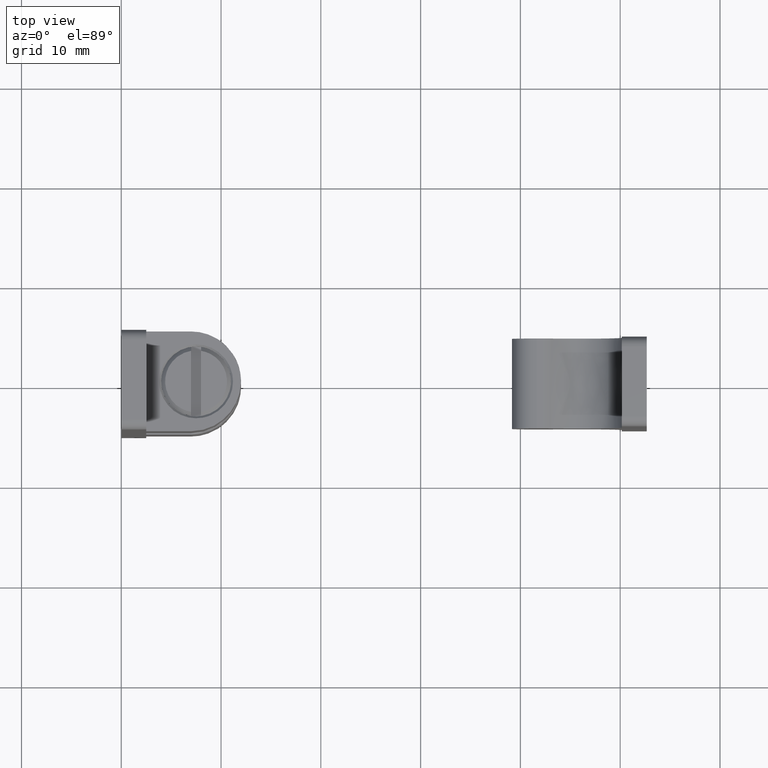
[diagram: clean part render]
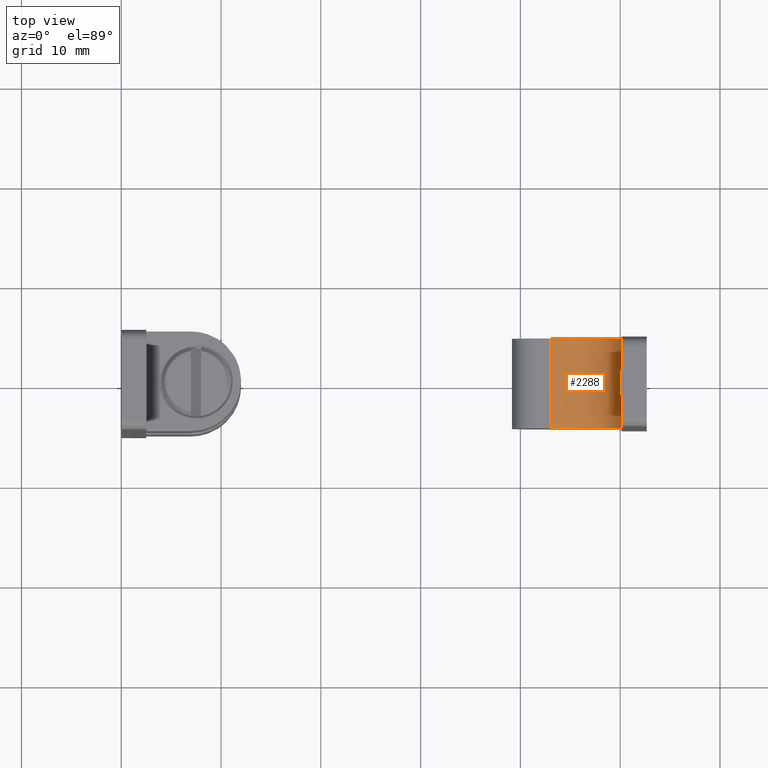
[diagram: same view with one face highlighted and labeled with its STEP entity id]
A machine part, top view. The second image highlights one B-rep face of the part: STEP entity #2288.
In plain terms, the highlighted face is a freeform B-spline surface patch.
Its self-contained STEP definition (entity closure, byte-faithful):
#1440=CARTESIAN_POINT('',(-6.900000000000000,2.683281572999725,50.160463779701800));
#1441=VERTEX_POINT('',#1440);
#1459=CARTESIAN_POINT('',(-6.900000000000000,-2.683281572999725,50.160463779701800));
#1460=VERTEX_POINT('',#1459);
#1461=CARTESIAN_POINT('',(-6.900000000000000,2.683281572999725,50.160463779701800));
#1462=CARTESIAN_POINT('',(-6.736215962102850,2.494061581110218,50.160463779701587));
#1463=CARTESIAN_POINT('',(-6.584719825233531,2.297806514886555,50.151511747926207));
#1464=CARTESIAN_POINT('',(-6.311059240807529,1.887757560071278,50.123877520736258));
#1465=CARTESIAN_POINT('',(-6.188792872402387,1.674029197876538,50.105157617178257));
#1466=CARTESIAN_POINT('',(-6.059164469002124,1.392530423629930,50.081288424523493));
#1467=CARTESIAN_POINT('',(-6.034411571409891,1.335505736931438,50.076494888955693));
#1468=CARTESIAN_POINT('',(-5.987435993049957,1.219881989518490,50.067027182040022));
#1469=CARTESIAN_POINT('',(-5.965179105343624,1.161163851565819,50.062344882822963));
#1470=CARTESIAN_POINT('',(-5.903173921794594,0.984396482909579,50.048872053121677));
#1471=CARTESIAN_POINT('',(-5.867952274189184,0.865221707409148,50.040617472717393));
#1472=CARTESIAN_POINT('',(-5.810659745994287,0.623959835759024,50.026721524475022));
#1473=CARTESIAN_POINT('',(-5.788590112821665,0.501872296817081,50.021083737918772));
#1474=CARTESIAN_POINT('',(-5.766169050320598,0.316348243974056,50.015287193673622));
#1475=CARTESIAN_POINT('',(-5.760477140294523,0.254107952797565,50.013796224988837));
#1476=CARTESIAN_POINT('',(-5.752805972583717,0.128793740299303,50.011781004455763));
#1477=CARTESIAN_POINT('',(-5.750846458709857,0.065746738640318,50.011262113673318));
#1478=CARTESIAN_POINT('',(-5.750527585717701,-0.247049070873026,50.011177886422423));
#1479=CARTESIAN_POINT('',(-5.780302422314303,-0.493112248255189,50.019328340728492));
#1480=CARTESIAN_POINT('',(-5.851365546456462,-0.796057409076314,50.036601313620032));
#1481=CARTESIAN_POINT('',(-5.867271890693095,-0.856415042564420,50.040395000364697));
#1482=CARTESIAN_POINT('',(-5.902389599336603,-0.976682527981229,50.048526944012274));
#1483=CARTESIAN_POINT('',(-5.921546407375168,-1.036378896517625,50.052851420280959));
#1484=CARTESIAN_POINT('',(-5.983075729240874,-1.212907257206778,50.066256824526967));
#1485=CARTESIAN_POINT('',(-6.029656111201215,-1.327753017411400,50.075805149123717));
#1486=CARTESIAN_POINT('',(-6.184009743483463,-1.664959626125720,50.104370791079432));
#1487=CARTESIAN_POINT('',(-6.306275821276323,-1.880051772843458,50.123284575058968));
#1488=CARTESIAN_POINT('',(-6.513472747292369,-2.191310101748304,50.144370128621389));
#1489=CARTESIAN_POINT('',(-6.586606741512003,-2.293200121902568,50.150184325681487));
#1490=CARTESIAN_POINT('',(-6.738787817413710,-2.491689633602960,50.158220614796782));
#1491=CARTESIAN_POINT('',(-6.817997917677437,-2.588544420642332,50.160463779701601));
#1492=CARTESIAN_POINT('',(-6.900000000000000,-2.683281572999725,50.160463779701800));
#1493=B_SPLINE_CURVE_WITH_KNOTS('',3,(#1461,#1462,#1463,#1464,#1465,#1466,#1467,#1468,#1469,#1470,#1471,#1472,#1473,#1474,#1475,#1476,#1477,#1478,#1479,#1480,#1481,#1482,#1483,#1484,#1485,#1486,#1487,#1488,#1489,#1490,#1491,#1492),.UNSPECIFIED.,.F.,.U.,(4,2,2,2,2,2,2,2,2,2,2,2,2,2,2,4),(0.0,0.125000000000000,0.249999999999999,0.281249999999999,0.312499999999999,0.374999999999999,0.437499999999999,0.468749999999999,0.499999999999999,0.624999999999998,0.656249999999998,0.687499999999998,0.749999999999999,0.874999999999999,0.937500000000000,1.0),.UNSPECIFIED.);
#1494=EDGE_CURVE('',#1441,#1460,#1493,.T.);
#1811=CARTESIAN_POINT('',(-6.900000000000000,4.499999999999949,50.160463779701587));
#1812=VERTEX_POINT('',#1811);
#1915=CARTESIAN_POINT('',(-3.224999999879925,4.499999999999949,43.063470264530750));
#1916=VERTEX_POINT('',#1915);
#1930=CARTESIAN_POINT('',(-3.224999999879925,4.499999999999949,43.063470264530750));
#1931=CARTESIAN_POINT('',(-1.645265798648145,4.499999999999949,45.298948834332080));
#1932=CARTESIAN_POINT('',(-2.903972552252672,4.499999999999949,47.729706307016841));
#1933=CARTESIAN_POINT('',(-4.162679305857198,4.499999999999949,50.160463779701594));
#1934=CARTESIAN_POINT('',(-6.900000000000000,4.499999999999949,50.160463779701587));
#1942=(BOUNDED_CURVE()B_SPLINE_CURVE(2,(#1930,#1931,#1932,#1933,#1934),.UNSPECIFIED.,.F.,.U.)B_SPLINE_CURVE_WITH_KNOTS((3,2,3),(0.0,0.500000000000000,1.0),.UNSPECIFIED.)CURVE()GEOMETRIC_REPRESENTATION_ITEM()RATIONAL_B_SPLINE_CURVE((1.0,0.854351120072046,1.0,0.854351120072046,1.0))REPRESENTATION_ITEM(''));
#1943=EDGE_CURVE('',#1916,#1812,#1942,.T.);
#1959=CARTESIAN_POINT('',(-6.900000000000000,-4.499999999999949,50.160463779701587));
#1960=VERTEX_POINT('',#1959);
#1966=CARTESIAN_POINT('',(-3.224999999879925,-4.499999999999949,43.063470264530750));
#1967=VERTEX_POINT('',#1966);
#1968=CARTESIAN_POINT('',(-3.224999999879925,-4.499999999999949,43.063470264530750));
#1969=CARTESIAN_POINT('',(-1.645265798648145,-4.499999999999949,45.298948834332080));
#1970=CARTESIAN_POINT('',(-2.903972552252672,-4.499999999999949,47.729706307016841));
#1971=CARTESIAN_POINT('',(-4.162679305857198,-4.499999999999949,50.160463779701594));
#1972=CARTESIAN_POINT('',(-6.900000000000000,-4.499999999999949,50.160463779701587));
#1980=(BOUNDED_CURVE()B_SPLINE_CURVE(2,(#1968,#1969,#1970,#1971,#1972),.UNSPECIFIED.,.F.,.U.)B_SPLINE_CURVE_WITH_KNOTS((3,2,3),(0.0,0.500000000000000,1.0),.UNSPECIFIED.)CURVE()GEOMETRIC_REPRESENTATION_ITEM()RATIONAL_B_SPLINE_CURVE((1.0,0.854351120072046,1.0,0.854351120072046,1.0))REPRESENTATION_ITEM(''));
#1981=EDGE_CURVE('',#1967,#1960,#1980,.T.);
#2244=CARTESIAN_POINT('',(-6.900000000000000,2.683281572999725,50.160463779701800));
#2245=CARTESIAN_POINT('',(-6.900000000000000,4.499999999999949,50.160463779701587));
#2246=QUASI_UNIFORM_CURVE('',1,(#2244,#2245),.UNSPECIFIED.,.F.,.U.);
#2247=EDGE_CURVE('',#1441,#1812,#2246,.T.);
#2252=CARTESIAN_POINT('',(-6.900000000000000,-4.499999999999949,50.160463779701587));
#2253=CARTESIAN_POINT('',(-6.900000000000000,-2.683281572999725,50.160463779701800));
#2254=QUASI_UNIFORM_CURVE('',1,(#2252,#2253),.UNSPECIFIED.,.F.,.U.);
#2255=EDGE_CURVE('',#1960,#1460,#2254,.T.);
#2262=CARTESIAN_POINT('',(-3.247802717459905,-4.724999999999948,43.031499152817723));
#2263=CARTESIAN_POINT('',(-3.247802717459905,4.730624999999948,43.031499152817723));
#2264=CARTESIAN_POINT('',(2.263936243262727,-4.724999999999948,50.688489988134364));
#2265=CARTESIAN_POINT('',(2.263936243262727,4.730624999999947,50.688489988134364));
#2266=CARTESIAN_POINT('',(-7.155312979443238,-4.724999999999948,50.153215195318523));
#2267=CARTESIAN_POINT('',(-7.155312979443238,4.730624999999948,50.153215195318523));
#2275=(BOUNDED_SURFACE()B_SPLINE_SURFACE(1,2,((#2262,#2264,#2266),(#2263,#2265,#2267)),.UNSPECIFIED.,.F.,.F.,.U.)B_SPLINE_SURFACE_WITH_KNOTS((2,2),(3,3),(0.0,9.455624999999897),(0.0,11.357154204917510),.UNSPECIFIED.)GEOMETRIC_REPRESENTATION_ITEM()RATIONAL_B_SPLINE_SURFACE(((1.0,0.430511096808296,1.0),(1.0,0.430511096808296,1.0)))REPRESENTATION_ITEM('')SURFACE());
#2276=ORIENTED_EDGE('',*,*,#1494,.F.);
#2277=ORIENTED_EDGE('',*,*,#2247,.T.);
#2278=ORIENTED_EDGE('',*,*,#1943,.F.);
#2279=CARTESIAN_POINT('',(-3.224999999879925,-4.499999999999949,43.063470264530750));
#2280=CARTESIAN_POINT('',(-3.224999999879925,4.499999999999949,43.063470264530750));
#2281=QUASI_UNIFORM_CURVE('',1,(#2279,#2280),.UNSPECIFIED.,.F.,.U.);
#2282=EDGE_CURVE('',#1967,#1916,#2281,.T.);
#2283=ORIENTED_EDGE('',*,*,#2282,.F.);
#2284=ORIENTED_EDGE('',*,*,#1981,.T.);
#2285=ORIENTED_EDGE('',*,*,#2255,.T.);
#2286=EDGE_LOOP('',(#2276,#2277,#2278,#2283,#2284,#2285));
#2287=FACE_OUTER_BOUND('',#2286,.T.);
#2288=ADVANCED_FACE('',(#2287),#2275,.F.);